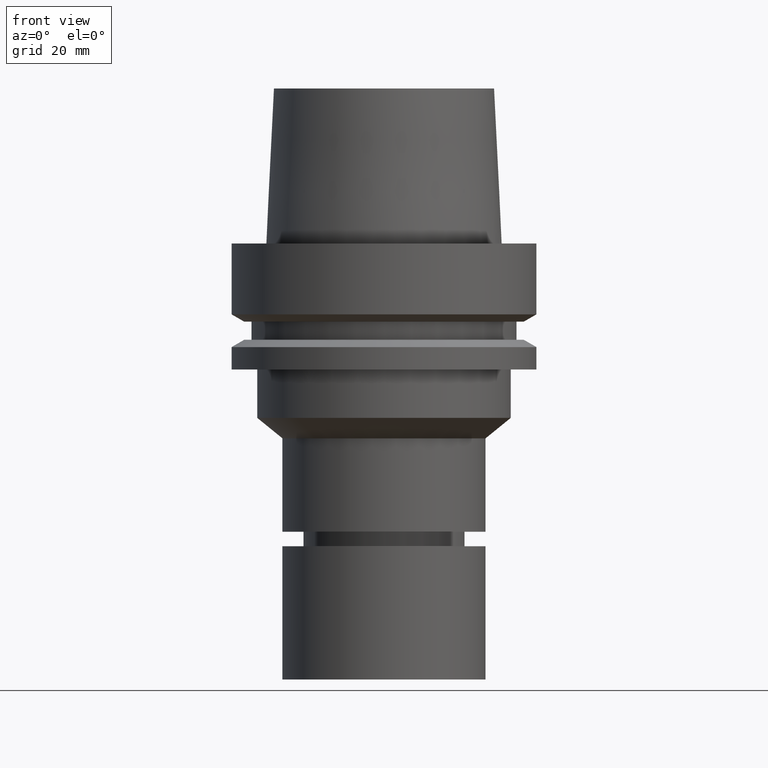
[diagram: clean part render]
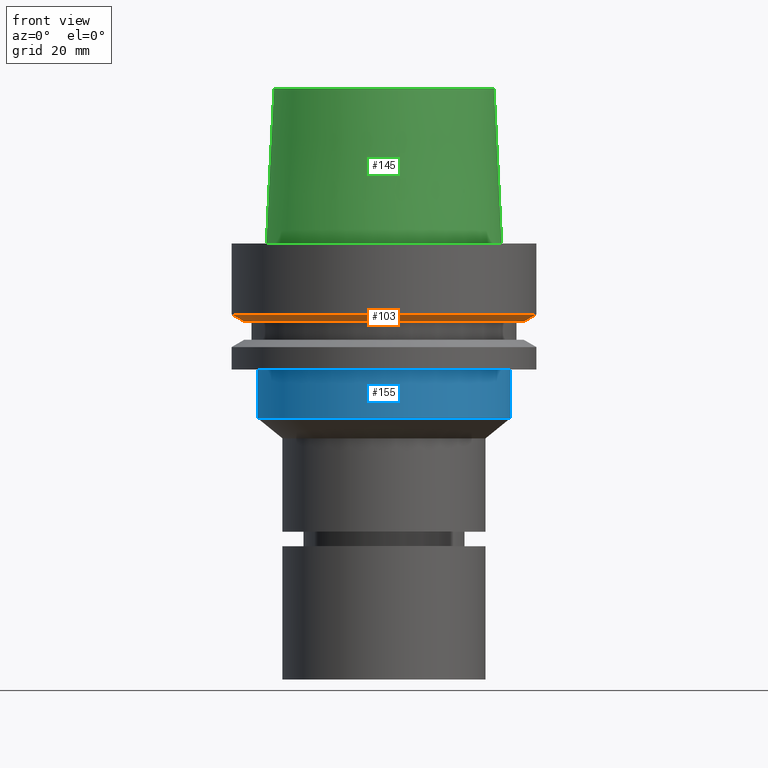
[diagram: same view with three faces highlighted in distinct colors, each labeled with its STEP entity id]
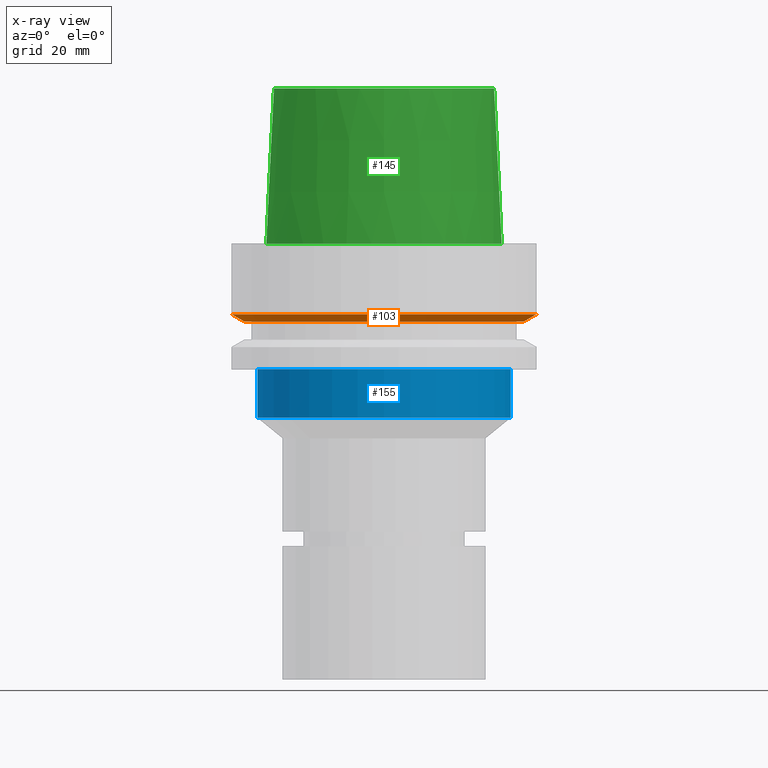
[diagram: x-ray of the same camera — body ghosted, the three highlighted faces saturated]
A machine part, front view with three faces highlighted in distinct colors.
The next image is the same camera in x-ray (body ghosted, the three faces saturated) — at least one of them is partly hidden behind the body in this view.
Their STEP definitions:

[orange] entity #103 — the highlighted conical surface has half-angle 60 deg.
#103=ADVANCED_FACE('Unnamed[1]',(#252,#253),#254,.T.);
#131=EDGE_CURVE('Unnamed[1]',#298,#298,#299,.T.);
#133=EDGE_CURVE('Unnamed[1]',#301,#301,#302,.T.);
#252=FACE_BOUND('',#453,.T.);
#253=FACE_BOUND('',#454,.T.);
#254=CONICAL_SURFACE('',#455,30.1987976320959,1.04719755119657);
#298=VERTEX_POINT('',#510);
#299=CIRCLE('',#511,28.8975952641919);
#301=VERTEX_POINT('',#514);
#302=CIRCLE('',#515,31.5);
#453=EDGE_LOOP('',(#672));
#454=EDGE_LOOP('',(#673));
#455=AXIS2_PLACEMENT_3D('',#674,#675,#676);
#510=CARTESIAN_POINT('',(9.87371481812551E-016,28.8975952641919,-16.125));
#511=AXIS2_PLACEMENT_3D('',#725,#726,#727);
#514=CARTESIAN_POINT('',(8.95369947681261E-016,31.5,-14.6225009252407));
#515=AXIS2_PLACEMENT_3D('',#728,#729,#730);
#672=ORIENTED_EDGE('',*,*,#133,.F.);
#673=ORIENTED_EDGE('',*,*,#131,.T.);
#674=CARTESIAN_POINT('',(9.41370714746907E-016,1.88274142949381E-015,-15.3737504626203));
#675=DIRECTION('',(-6.12323399573677E-017,-1.22464679914735E-016,1.0));
#676=DIRECTION('',(-1.23259516440783E-032,1.0,1.22464679914735E-016));
#725=CARTESIAN_POINT('',(9.87371481812552E-016,1.9747429636251E-015,-16.125));
#726=DIRECTION('',(-6.12323399573677E-017,-1.22464679914735E-016,1.0));
#727=DIRECTION('',(-1.23259516440783E-032,1.0,1.22464679914735E-016));
#728=CARTESIAN_POINT('',(8.95369947681262E-016,1.79073989536252E-015,-14.6225009252407));
#729=DIRECTION('',(-6.12323399573677E-017,-1.22464679914735E-016,1.0));
#730=DIRECTION('',(-1.23259516440783E-032,1.0,1.22464679914735E-016));

[blue] entity #155 — the highlighted cylindrical surface (bore or boss wall) has radius 26.3 mm, axis along (-0, -0, 1).
#92=EDGE_CURVE('Unnamed[1]',#235,#235,#236,.T.);
#155=ADVANCED_FACE('Unnamed[1]',(#331,#332),#333,.T.);
#173=EDGE_CURVE('Unnamed[1]',#360,#360,#361,.T.);
#235=VERTEX_POINT('',#432);
#236=CIRCLE('',#433,26.3);
#331=FACE_BOUND('',#550,.T.);
#332=FACE_BOUND('',#551,.T.);
#333=CYLINDRICAL_SURFACE('',#552,26.3);
#360=VERTEX_POINT('',#586);
#361=CIRCLE('',#587,26.3);
#432=CARTESIAN_POINT('',(1.59204083889154E-015,26.3,-25.9999999999996));
#433=AXIS2_PLACEMENT_3D('',#653,#654,#655);
#550=EDGE_LOOP('',(#757));
#551=EDGE_LOOP('',(#758));
#552=AXIS2_PLACEMENT_3D('',#759,#760,#761);
#586=CARTESIAN_POINT('',(2.20436423846528E-015,26.3,-36.0000000000007));
#587=AXIS2_PLACEMENT_3D('',#791,#792,#793);
#653=CARTESIAN_POINT('',(1.59204083889154E-015,3.18408167778307E-015,-25.9999999999996));
#654=DIRECTION('',(-6.12323399573677E-017,-1.22464679914735E-016,1.0));
#655=DIRECTION('',(-1.23259516440783E-032,1.0,1.22464679914735E-016));
#757=ORIENTED_EDGE('',*,*,#92,.F.);
#758=ORIENTED_EDGE('',*,*,#173,.T.);
#759=CARTESIAN_POINT('',(1.89820253867841E-015,3.79640507735681E-015,-31.0000000000002));
#760=DIRECTION('',(-6.12323399573677E-017,-1.22464679914735E-016,1.0));
#761=DIRECTION('',(-1.23259516440783E-032,1.0,1.22464679914735E-016));
#791=CARTESIAN_POINT('',(2.20436423846528E-015,4.40872847693056E-015,-36.0000000000007));
#792=DIRECTION('',(-6.12323399573677E-017,-1.22464679914735E-016,1.0));
#793=DIRECTION('',(-1.23259516440783E-032,1.0,1.22464679914735E-016));

[green] entity #145 — the highlighted conical surface has half-angle 2.862 deg.
#145=ADVANCED_FACE('Unnamed[1]',(#317,#318),#319,.T.);
#182=EDGE_CURVE('Unnamed[1]',#374,#374,#375,.T.);
#187=EDGE_CURVE('Unnamed[1]',#382,#382,#383,.T.);
#317=FACE_BOUND('',#533,.T.);
#318=FACE_BOUND('',#534,.T.);
#319=CONICAL_SURFACE('',#535,23.515,0.0499583957219433);
#374=VERTEX_POINT('',#604);
#375=CIRCLE('',#605,24.315);
#382=VERTEX_POINT('',#614);
#383=CIRCLE('',#615,22.715);
#533=EDGE_LOOP('',(#744));
#534=EDGE_LOOP('',(#745));
#535=AXIS2_PLACEMENT_3D('',#746,#747,#748);
#604=CARTESIAN_POINT('',(-2.99705514225764E-031,24.315,2.97772869212679E-015));
#605=AXIS2_PLACEMENT_3D('',#806,#807,#808);
#614=CARTESIAN_POINT('',(-1.95943487863576E-015,22.715,32.0));
#615=AXIS2_PLACEMENT_3D('',#815,#816,#817);
#744=ORIENTED_EDGE('',*,*,#187,.F.);
#745=ORIENTED_EDGE('',*,*,#182,.T.);
#746=CARTESIAN_POINT('',(-9.79717439317882E-016,-1.95943487863576E-015,16.0));
#747=DIRECTION('',(6.12323399573677E-017,1.22464679914735E-016,-1.0));
#748=DIRECTION('',(-1.23259516440783E-032,1.0,1.22464679914735E-016));
#806=CARTESIAN_POINT('',(0.0,0.0,0.0));
#807=DIRECTION('',(-6.12323399573677E-017,-1.22464679914735E-016,1.0));
#808=DIRECTION('',(-1.23259516440783E-032,1.0,1.22464679914735E-016));
#815=CARTESIAN_POINT('',(-1.95943487863576E-015,-3.91886975727153E-015,32.0));
#816=DIRECTION('',(-6.12323399573676E-017,-1.22464679914735E-016,1.0));
#817=DIRECTION('',(-1.23259516440783E-032,1.0,1.22464679914735E-016));